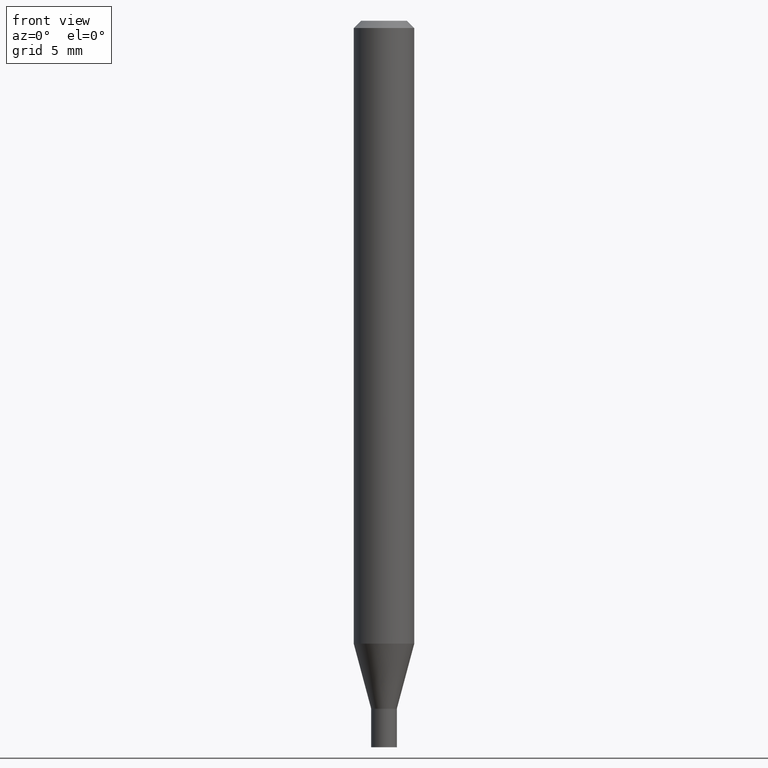
[diagram: clean part render]
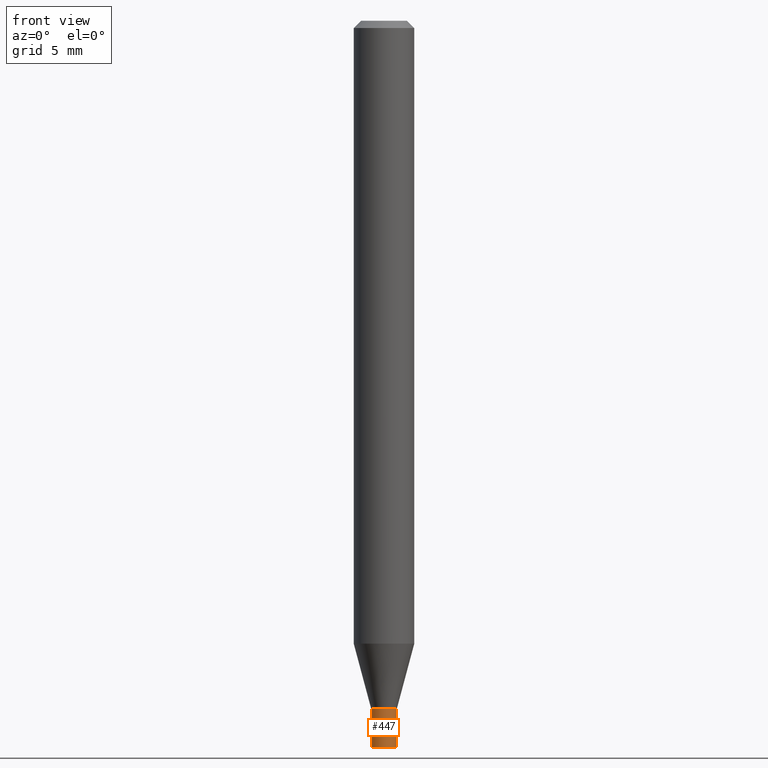
[diagram: same view with one face highlighted and labeled with its STEP entity id]
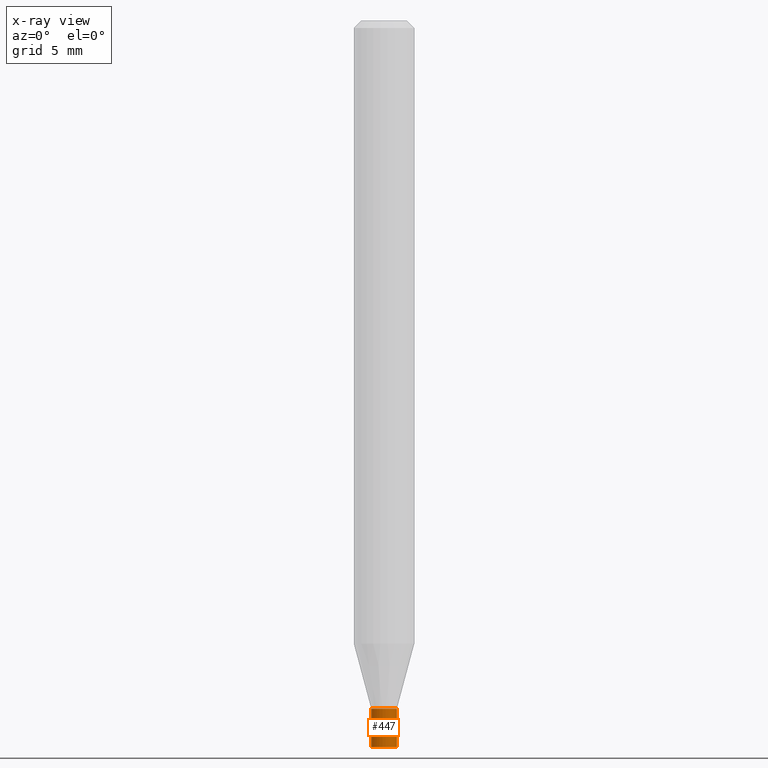
[diagram: x-ray of the same camera — body ghosted, the highlighted face saturated]
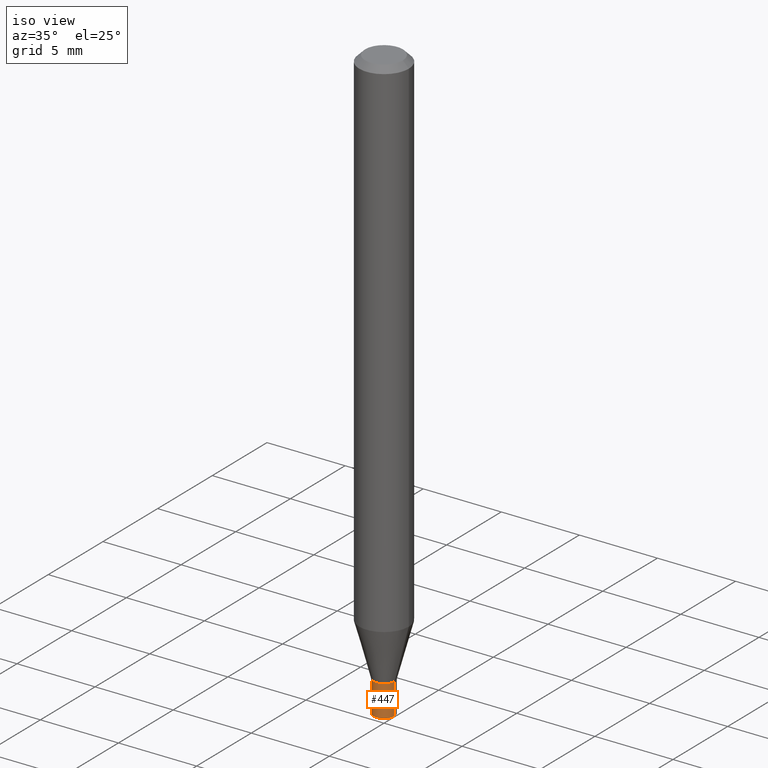
[diagram: same view with one face highlighted and labeled with its STEP entity id]
A machine part, front view. The second image highlights one B-rep face of the part: STEP entity #447.
The next image is the same camera in x-ray: the body ghosted, the highlighted face saturated — about 0% of this face is hidden behind the body in this view.
A second angle (iso view) of the same face is appended — the face is thin or edge-on in the first view.
In plain terms, the highlighted cylindrical surface (edge-blend (fillet) strip) has radius 0.6731 mm, axis along (-0, 0, 1).
Its self-contained STEP definition (entity closure, byte-faithful):
#10 = DIRECTION ( 'NONE',  ( 1.000000000000000000, -6.982962677686277755E-15, 0.000000000000000000 ) ) ;
#12 = VECTOR ( 'NONE', #250, 39.37007874015748143 ) ;
#20 = AXIS2_PLACEMENT_3D ( 'NONE', #175, #456, #454 ) ;
#44 = ORIENTED_EDGE ( 'NONE', *, *, #274, .F. ) ;
#53 = CARTESIAN_POINT ( 'NONE',  ( 0.02649999999999999925, -5.422270519223404655E-15, -1.500000000000000222 ) ) ;
#62 = ORIENTED_EDGE ( 'NONE', *, *, #163, .T. ) ;
#83 = DIRECTION ( 'NONE',  ( -2.445468806185136597E-29, 3.491481338843145583E-15, 1.000000000000000000 ) ) ;
#98 = ORIENTED_EDGE ( 'NONE', *, *, #275, .F. ) ;
#116 = EDGE_CURVE ( 'NONE', #323, #455, #173, .T. ) ;
#118 = FACE_OUTER_BOUND ( 'NONE', #387, .T. ) ;
#120 = DIRECTION ( 'NONE',  ( -2.445468806185136597E-29, 3.491481338843145583E-15, 1.000000000000000000 ) ) ;
#137 = DIRECTION ( 'NONE',  ( -2.445468806185136877E-29, 3.491481338843145188E-15, 1.000000000000000000 ) ) ;
#139 = CARTESIAN_POINT ( 'NONE',  ( 0.02649999999999999925, -1.850485109586860590E-16, 1.292186845585922957E-30 ) ) ;
#151 = DIRECTION ( 'NONE',  ( 1.000000000000000000, -6.982962677686266711E-15, 4.876176775795935793E-29 ) ) ;
#154 = CIRCLE ( 'NONE', #415, 0.02649999999999999925 ) ;
#163 = EDGE_CURVE ( 'NONE', #455, #388, #356, .T. ) ;
#173 = CIRCLE ( 'NONE', #20, 0.02649999999999999925 ) ;
#175 = CARTESIAN_POINT ( 'NONE',  ( 3.668203209277704895E-29, -5.237222008264718177E-15, -1.500000000000000222 ) ) ;
#182 = CYLINDRICAL_SURFACE ( 'NONE', #240, 0.02649999999999999925 ) ;
#228 = CARTESIAN_POINT ( 'NONE',  ( 3.473788439185986455E-29, -4.959649241826688854E-15, -1.420500000000000096 ) ) ;
#240 = AXIS2_PLACEMENT_3D ( 'NONE', #320, #83, #151 ) ;
#250 = DIRECTION ( 'NONE',  ( -2.445468806185136877E-29, 3.491481338843145188E-15, 1.000000000000000000 ) ) ;
#257 = LINE ( 'NONE', #287, #12 ) ;
#274 = EDGE_CURVE ( 'NONE', #460, #388, #154, .T. ) ;
#275 = EDGE_CURVE ( 'NONE', #323, #460, #257, .T. ) ;
#287 = CARTESIAN_POINT ( 'NONE',  ( -0.02649999999999999925, 1.882938249764265439E-16, -1.303517798917549926E-30 ) ) ;
#293 = CARTESIAN_POINT ( 'NONE',  ( -0.02649999999999999925, -4.910141800069277982E-15, -1.420500000000000096 ) ) ;
#320 = CARTESIAN_POINT ( 'NONE',  ( 0.000000000000000000, 0.000000000000000000, 0.000000000000000000 ) ) ;
#323 = VERTEX_POINT ( 'NONE', #443 ) ;
#333 = CARTESIAN_POINT ( 'NONE',  ( 0.02649999999999999925, -5.144697752785374543E-15, -1.420500000000000096 ) ) ;
#356 = LINE ( 'NONE', #139, #424 ) ;
#387 = EDGE_LOOP ( 'NONE', ( #98, #458, #62, #44 ) ) ;
#388 = VERTEX_POINT ( 'NONE', #333 ) ;
#415 = AXIS2_PLACEMENT_3D ( 'NONE', #228, #120, #10 ) ;
#424 = VECTOR ( 'NONE', #137, 39.37007874015748143 ) ;
#443 = CARTESIAN_POINT ( 'NONE',  ( -0.02649999999999999925, -4.910141800069277982E-15, -1.500000000000000222 ) ) ;
#447 = ADVANCED_FACE ( 'NONE', ( #118 ), #182, .T. ) ;
#454 = DIRECTION ( 'NONE',  ( 1.000000000000000000, -6.982962677686277755E-15, 0.000000000000000000 ) ) ;
#455 = VERTEX_POINT ( 'NONE', #53 ) ;
#456 = DIRECTION ( 'NONE',  ( -2.445468806185136597E-29, 3.491481338843145583E-15, 1.000000000000000000 ) ) ;
#458 = ORIENTED_EDGE ( 'NONE', *, *, #116, .T. ) ;
#460 = VERTEX_POINT ( 'NONE', #293 ) ;